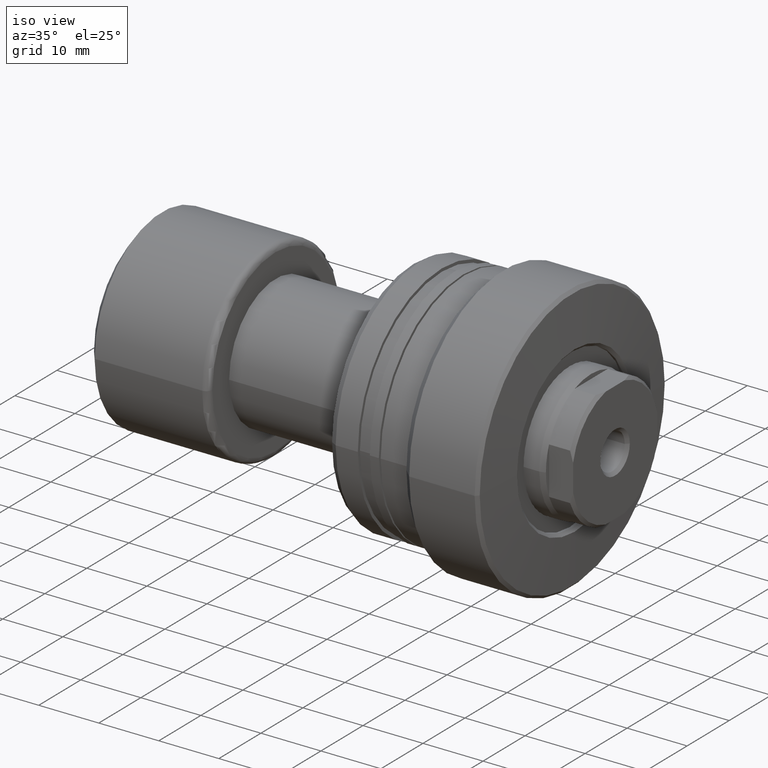
[diagram: clean part render]
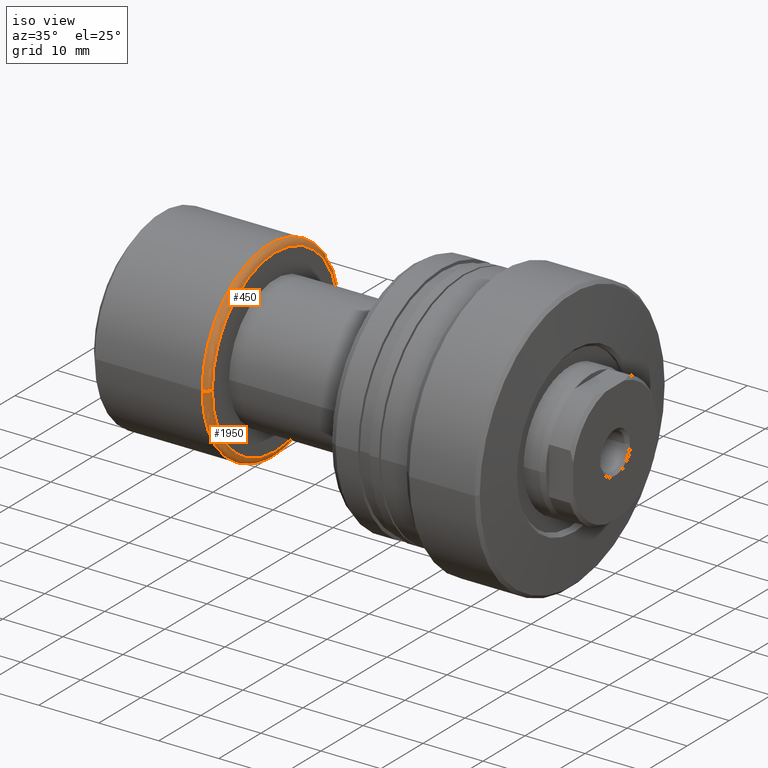
[diagram: same view with one multi-face feature highlighted, each face labeled with its STEP entity id]
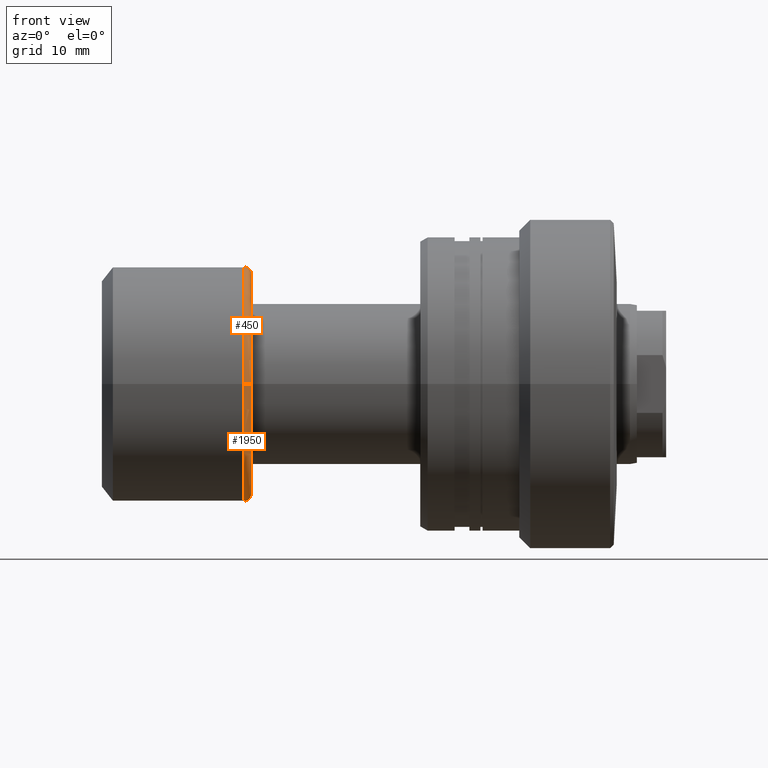
[diagram: same view with one multi-face feature highlighted, each face labeled with its STEP entity id]
A machine part, iso view. The highlighted faces form ONE feature: a constant-radius fillet chain: 2 tangent blend faces with common blend radius 1 mm. The faces share edges in the B-rep.
A second angle (front view) of the same feature is appended — it is thin or edge-on in the first view.
Their STEP definitions:
[1] entity #1950 (Torus):
#28 = DIRECTION ( 'NONE',  ( 0.000000000000000000, -1.000000000000000000, -1.224646799147353454E-16 ) ) ;
#97 = CIRCLE ( 'NONE', #2174, 1.000000000000000888 ) ;
#99 = EDGE_CURVE ( 'NONE', #918, #1478, #97, .T. ) ;
#136 = EDGE_CURVE ( 'NONE', #1326, #918, #947, .T. ) ;
#244 = DIRECTION ( 'NONE',  ( -1.000000000000000000, -1.069542322069065801E-17, -0.000000000000000000 ) ) ;
#329 = CARTESIAN_POINT ( 'NONE',  ( 20.39999999999999858, -15.00000000000000000, 0.000000000000000000 ) ) ;
#537 = ORIENTED_EDGE ( 'NONE', *, *, #99, .T. ) ;
#562 = DIRECTION ( 'NONE',  ( 0.000000000000000000, -1.000000000000000000, 0.000000000000000000 ) ) ;
#607 = CARTESIAN_POINT ( 'NONE',  ( 19.39999999999999858, 15.00000000000000000, 1.836970198721029589E-15 ) ) ;
#619 = FACE_OUTER_BOUND ( 'NONE', #850, .T. ) ;
#691 = TOROIDAL_SURFACE ( 'NONE', #2281, 15.00000000000000000, 1.000000000000000888 ) ;
#708 = EDGE_CURVE ( 'NONE', #1326, #1928, #2112, .T. ) ;
#727 = ORIENTED_EDGE ( 'NONE', *, *, #136, .T. ) ;
#850 = EDGE_LOOP ( 'NONE', ( #2435, #727, #537, #1499 ) ) ;
#902 = DIRECTION ( 'NONE',  ( -1.000000000000000000, -1.069542322069065801E-17, -0.000000000000000000 ) ) ;
#918 = VERTEX_POINT ( 'NONE', #329 ) ;
#947 = CIRCLE ( 'NONE', #1756, 15.00000000000000000 ) ;
#1114 = AXIS2_PLACEMENT_3D ( 'NONE', #1650, #244, #2202 ) ;
#1326 = VERTEX_POINT ( 'NONE', #2024 ) ;
#1478 = VERTEX_POINT ( 'NONE', #2245 ) ;
#1499 = ORIENTED_EDGE ( 'NONE', *, *, #1599, .F. ) ;
#1530 = CARTESIAN_POINT ( 'NONE',  ( 19.40000000000000213, 16.00000000000000000, 1.959434878635765131E-15 ) ) ;
#1541 = CARTESIAN_POINT ( 'NONE',  ( 19.39999999999999858, 0.000000000000000000, 0.000000000000000000 ) ) ;
#1566 = DIRECTION ( 'NONE',  ( -1.000000000000000000, -1.069542322069065801E-17, -0.000000000000000000 ) ) ;
#1599 = EDGE_CURVE ( 'NONE', #1928, #1478, #2293, .T. ) ;
#1650 = CARTESIAN_POINT ( 'NONE',  ( 19.40000000000000213, 2.074912104813987675E-16, 0.000000000000000000 ) ) ;
#1756 = AXIS2_PLACEMENT_3D ( 'NONE', #2376, #902, #562 ) ;
#1827 = CARTESIAN_POINT ( 'NONE',  ( 19.39999999999999858, -15.00000000000000000, 0.000000000000000000 ) ) ;
#1892 = DIRECTION ( 'NONE',  ( 1.309811581274509052E-33, -1.224646799147353207E-16, 1.000000000000000000 ) ) ;
#1928 = VERTEX_POINT ( 'NONE', #1530 ) ;
#1950 = ADVANCED_FACE ( 'NONE', ( #619 ), #691, .T. ) ;
#2024 = CARTESIAN_POINT ( 'NONE',  ( 20.39999999999999858, 15.00000000000000000, 1.898202538678397163E-15 ) ) ;
#2112 = CIRCLE ( 'NONE', #2222, 1.000000000000000888 ) ;
#2174 = AXIS2_PLACEMENT_3D ( 'NONE', #1827, #2389, #2207 ) ;
#2202 = DIRECTION ( 'NONE',  ( 0.000000000000000000, -1.000000000000000000, 0.000000000000000000 ) ) ;
#2207 = DIRECTION ( 'NONE',  ( -1.000000000000000000, 0.000000000000000000, 0.000000000000000000 ) ) ;
#2222 = AXIS2_PLACEMENT_3D ( 'NONE', #607, #1892, #28 ) ;
#2245 = CARTESIAN_POINT ( 'NONE',  ( 19.40000000000000213, -16.00000000000000000, 0.000000000000000000 ) ) ;
#2281 = AXIS2_PLACEMENT_3D ( 'NONE', #1541, #1566, #2282 ) ;
#2282 = DIRECTION ( 'NONE',  ( 1.069542322069065801E-17, -1.000000000000000000, 0.000000000000000000 ) ) ;
#2293 = CIRCLE ( 'NONE', #1114, 16.00000000000000000 ) ;
#2376 = CARTESIAN_POINT ( 'NONE',  ( 20.39999999999999858, 2.181866337020894116E-16, 0.000000000000000000 ) ) ;
#2389 = DIRECTION ( 'NONE',  ( 0.000000000000000000, 0.000000000000000000, -1.000000000000000000 ) ) ;
#2435 = ORIENTED_EDGE ( 'NONE', *, *, #708, .F. ) ;
[2] entity #450 (Torus):
#2 = DIRECTION ( 'NONE',  ( -1.000000000000000000, -1.069542322069065801E-17, -0.000000000000000000 ) ) ;
#28 = DIRECTION ( 'NONE',  ( 0.000000000000000000, -1.000000000000000000, -1.224646799147353454E-16 ) ) ;
#97 = CIRCLE ( 'NONE', #2174, 1.000000000000000888 ) ;
#99 = EDGE_CURVE ( 'NONE', #918, #1478, #97, .T. ) ;
#329 = CARTESIAN_POINT ( 'NONE',  ( 20.39999999999999858, -15.00000000000000000, 0.000000000000000000 ) ) ;
#398 = CARTESIAN_POINT ( 'NONE',  ( 20.39999999999999858, 2.181866337020894116E-16, 0.000000000000000000 ) ) ;
#450 = ADVANCED_FACE ( 'NONE', ( #2394 ), #1054, .T. ) ;
#517 = EDGE_CURVE ( 'NONE', #1478, #1928, #905, .T. ) ;
#571 = DIRECTION ( 'NONE',  ( 0.000000000000000000, -1.000000000000000000, 0.000000000000000000 ) ) ;
#607 = CARTESIAN_POINT ( 'NONE',  ( 19.39999999999999858, 15.00000000000000000, 1.836970198721029589E-15 ) ) ;
#680 = AXIS2_PLACEMENT_3D ( 'NONE', #742, #937, #1297 ) ;
#692 = ORIENTED_EDGE ( 'NONE', *, *, #708, .T. ) ;
#708 = EDGE_CURVE ( 'NONE', #1326, #1928, #2112, .T. ) ;
#742 = CARTESIAN_POINT ( 'NONE',  ( 19.39999999999999858, 0.000000000000000000, 0.000000000000000000 ) ) ;
#905 = CIRCLE ( 'NONE', #1370, 16.00000000000000000 ) ;
#918 = VERTEX_POINT ( 'NONE', #329 ) ;
#937 = DIRECTION ( 'NONE',  ( -1.000000000000000000, -1.069542322069065801E-17, -0.000000000000000000 ) ) ;
#1054 = TOROIDAL_SURFACE ( 'NONE', #680, 15.00000000000000000, 1.000000000000000888 ) ;
#1056 = ORIENTED_EDGE ( 'NONE', *, *, #517, .F. ) ;
#1146 = ORIENTED_EDGE ( 'NONE', *, *, #99, .F. ) ;
#1297 = DIRECTION ( 'NONE',  ( 1.069542322069065801E-17, -1.000000000000000000, 0.000000000000000000 ) ) ;
#1326 = VERTEX_POINT ( 'NONE', #2024 ) ;
#1370 = AXIS2_PLACEMENT_3D ( 'NONE', #2262, #2, #1725 ) ;
#1386 = CIRCLE ( 'NONE', #2156, 15.00000000000000000 ) ;
#1457 = ORIENTED_EDGE ( 'NONE', *, *, #2259, .T. ) ;
#1478 = VERTEX_POINT ( 'NONE', #2245 ) ;
#1530 = CARTESIAN_POINT ( 'NONE',  ( 19.40000000000000213, 16.00000000000000000, 1.959434878635765131E-15 ) ) ;
#1548 = DIRECTION ( 'NONE',  ( -1.000000000000000000, -1.069542322069065801E-17, -0.000000000000000000 ) ) ;
#1637 = EDGE_LOOP ( 'NONE', ( #1457, #692, #1056, #1146 ) ) ;
#1725 = DIRECTION ( 'NONE',  ( 0.000000000000000000, -1.000000000000000000, 0.000000000000000000 ) ) ;
#1827 = CARTESIAN_POINT ( 'NONE',  ( 19.39999999999999858, -15.00000000000000000, 0.000000000000000000 ) ) ;
#1892 = DIRECTION ( 'NONE',  ( 1.309811581274509052E-33, -1.224646799147353207E-16, 1.000000000000000000 ) ) ;
#1928 = VERTEX_POINT ( 'NONE', #1530 ) ;
#2024 = CARTESIAN_POINT ( 'NONE',  ( 20.39999999999999858, 15.00000000000000000, 1.898202538678397163E-15 ) ) ;
#2112 = CIRCLE ( 'NONE', #2222, 1.000000000000000888 ) ;
#2156 = AXIS2_PLACEMENT_3D ( 'NONE', #398, #1548, #571 ) ;
#2174 = AXIS2_PLACEMENT_3D ( 'NONE', #1827, #2389, #2207 ) ;
#2207 = DIRECTION ( 'NONE',  ( -1.000000000000000000, 0.000000000000000000, 0.000000000000000000 ) ) ;
#2222 = AXIS2_PLACEMENT_3D ( 'NONE', #607, #1892, #28 ) ;
#2245 = CARTESIAN_POINT ( 'NONE',  ( 19.40000000000000213, -16.00000000000000000, 0.000000000000000000 ) ) ;
#2259 = EDGE_CURVE ( 'NONE', #918, #1326, #1386, .T. ) ;
#2262 = CARTESIAN_POINT ( 'NONE',  ( 19.40000000000000213, 2.074912104813987675E-16, 0.000000000000000000 ) ) ;
#2389 = DIRECTION ( 'NONE',  ( 0.000000000000000000, 0.000000000000000000, -1.000000000000000000 ) ) ;
#2394 = FACE_OUTER_BOUND ( 'NONE', #1637, .T. ) ;